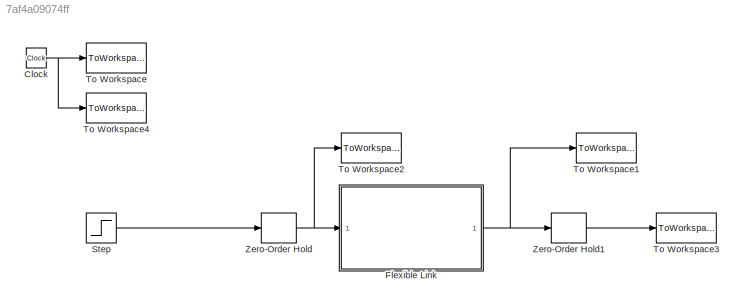
MODEL slx_7af4a09074ff
KIND model
CONFIG AbsTol = auto
CONFIG EnableMultiTasking = off
CONFIG FixedStep = auto
CONFIG MaxStep = auto
CONFIG MinStep = auto
CONFIG RelTol = 1e-3
CONFIG SampleTimeConstraint = Unconstrained
CONFIG Solver = VariableStepAuto
CONFIG SolverName = VariableStepAuto
CONFIG StartTime = 0.0
CONFIG StopTime = 10.0
BLOCK [Clock] Clock
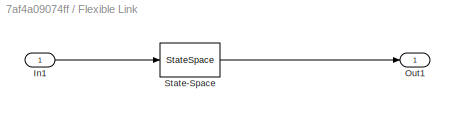
BLOCK [SubSystem] Flexible Link
  Ports = [1, 1]
  RequestExecContextInheritance = off
BLOCK [Inport] Flexible Link/In1
  IconDisplay = Port number
BLOCK [Outport] Flexible Link/Out1
  IconDisplay = Port number
BLOCK [StateSpace] Flexible Link/State-Space
  A = Atrue
  B = Btrue
  C = Ctrue
  D = Dtrue
  InitialCondition = 0
  Ports = [1, 1]
BLOCK [Step] Step
  SampleTime = Ts
BLOCK [ToWorkspace] To Workspace
  FixptAsFi = on
  MaxDataPoints = inf
  Ports = [1]
  SampleTime = -1
  Save2DSignal = 3-D array (concatenate along third dimension)
  VariableName = t
BLOCK [ToWorkspace] To Workspace1
  FixptAsFi = on
  MaxDataPoints = inf
  Ports = [1]
  SampleTime = -1
  Save2DSignal = 3-D array (concatenate along third dimension)
  VariableName = y
BLOCK [ToWorkspace] To Workspace2
  FixptAsFi = on
  MaxDataPoints = inf
  Ports = [1]
  SampleTime = Ts
  Save2DSignal = 3-D array (concatenate along third dimension)
  VariableName = us
BLOCK [ToWorkspace] To Workspace3
  FixptAsFi = on
  MaxDataPoints = inf
  Ports = [1]
  SampleTime = Ts
  Save2DSignal = 3-D array (concatenate along third dimension)
  VariableName = ys
BLOCK [ToWorkspace] To Workspace4
  FixptAsFi = on
  MaxDataPoints = inf
  Ports = [1]
  SampleTime = Ts
  Save2DSignal = 3-D array (concatenate along third dimension)
  VariableName = ts
BLOCK [ZeroOrderHold] Zero-Order Hold
  SampleTime = Ts
BLOCK [ZeroOrderHold] Zero-Order Hold1
  SampleTime = Ts
NET Clock:1 -> To Workspace4:1, To Workspace:1
LINE Flexible Link/In1:1 -> Flexible Link/State-Space:1
LINE Flexible Link/State-Space:1 -> Flexible Link/Out1:1
NET Flexible Link:1 -> To Workspace1:1, Zero-Order Hold1:1
LINE Step:1 -> Zero-Order Hold:1
LINE Zero-Order Hold1:1 -> To Workspace3:1
NET Zero-Order Hold:1 -> Flexible Link:1, To Workspace2:1
note: NET lines group one-source signal fan-out (src -> all destinations, sorted); 1:1 wires keep LINE
